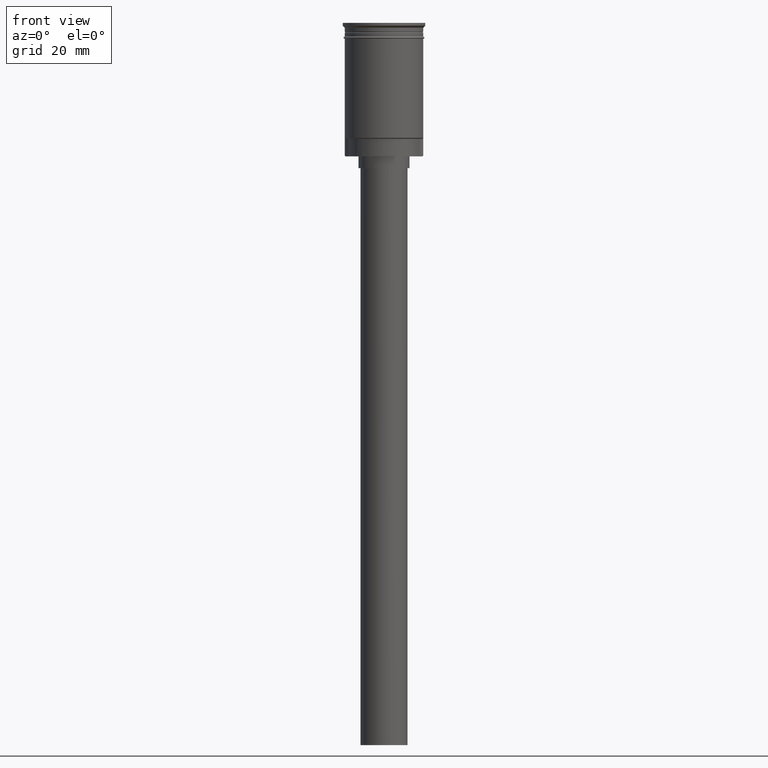
[diagram: clean part render]
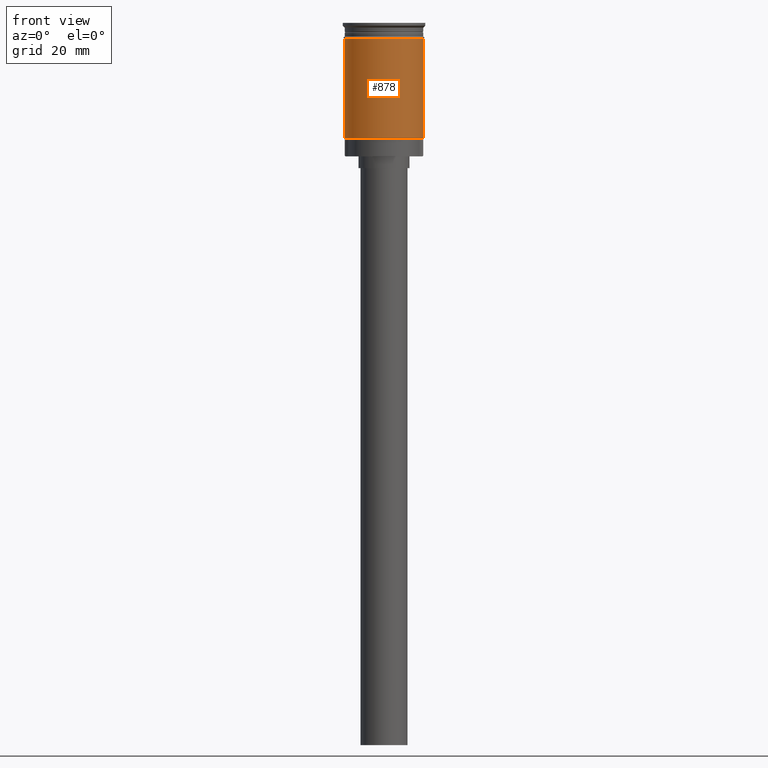
[diagram: same view with one face highlighted and labeled with its STEP entity id]
A machine part, front view. The second image highlights one B-rep face of the part: STEP entity #878.
In plain terms, the highlighted cylindrical surface (partial cylindrical patch) has radius 10 mm, axis along (-0, -0, 1).
Its self-contained STEP definition (entity closure, byte-faithful):
#85 = VERTEX_POINT ( 'NONE', #1096 ) ;
#97 = VERTEX_POINT ( 'NONE', #663 ) ;
#284 = ORIENTED_EDGE ( 'NONE', *, *, #518, .F. ) ;
#369 = DIRECTION ( 'NONE',  ( -0.000000000000000000, -0.000000000000000000, 1.000000000000000000 ) ) ;
#424 = DIRECTION ( 'NONE',  ( -0.000000000000000000, -0.000000000000000000, 1.000000000000000000 ) ) ;
#453 = VECTOR ( 'NONE', #369, 1000.000000000000000 ) ;
#456 = EDGE_CURVE ( 'NONE', #85, #1098, #1303, .T. ) ;
#518 = EDGE_CURVE ( 'NONE', #941, #85, #563, .T. ) ;
#563 = LINE ( 'NONE', #1072, #823 ) ;
#570 = CARTESIAN_POINT ( 'NONE',  ( -9.999999999999991118, 0.000000000000000000, -29.29999999999997229 ) ) ;
#579 = ORIENTED_EDGE ( 'NONE', *, *, #621, .T. ) ;
#621 = EDGE_CURVE ( 'NONE', #97, #1098, #1101, .T. ) ;
#663 = CARTESIAN_POINT ( 'NONE',  ( 9.999999999999994671, 1.224646799147352665E-15, -29.29999999999997229 ) ) ;
#686 = DIRECTION ( 'NONE',  ( -1.000000000000000000, 0.000000000000000000, 0.000000000000000000 ) ) ;
#691 = CARTESIAN_POINT ( 'NONE',  ( 0.000000000000000000, 0.000000000000000000, -29.29999999999997229 ) ) ;
#716 = CARTESIAN_POINT ( 'NONE',  ( 0.000000000000000000, 0.000000000000000000, -3.999999999999996447 ) ) ;
#823 = VECTOR ( 'NONE', #1459, 1000.000000000000000 ) ;
#878 = ADVANCED_FACE ( 'NONE', ( #1503 ), #888, .T. ) ;
#888 = CYLINDRICAL_SURFACE ( 'NONE', #1056, 9.999999999999994671 ) ;
#927 = EDGE_CURVE ( 'NONE', #941, #97, #1414, .T. ) ;
#940 = CARTESIAN_POINT ( 'NONE',  ( 0.000000000000000000, 0.000000000000000000, 0.000000000000000000 ) ) ;
#941 = VERTEX_POINT ( 'NONE', #570 ) ;
#961 = DIRECTION ( 'NONE',  ( -0.000000000000000000, -0.000000000000000000, 1.000000000000000000 ) ) ;
#987 = CARTESIAN_POINT ( 'NONE',  ( 9.999999999999994671, 0.000000000000000000, 0.000000000000000000 ) ) ;
#1015 = CARTESIAN_POINT ( 'NONE',  ( 9.999999999999998224, 0.000000000000000000, -3.999999999999996447 ) ) ;
#1056 = AXIS2_PLACEMENT_3D ( 'NONE', #940, #424, #1413 ) ;
#1063 = DIRECTION ( 'NONE',  ( -0.000000000000000000, -0.000000000000000000, 1.000000000000000000 ) ) ;
#1072 = CARTESIAN_POINT ( 'NONE',  ( -9.999999999999994671, 1.224646799147352665E-15, 0.000000000000000000 ) ) ;
#1096 = CARTESIAN_POINT ( 'NONE',  ( -10.00000000000000000, 1.224646799147353256E-15, -3.999999999999996447 ) ) ;
#1098 = VERTEX_POINT ( 'NONE', #1015 ) ;
#1101 = LINE ( 'NONE', #987, #453 ) ;
#1158 = AXIS2_PLACEMENT_3D ( 'NONE', #691, #1063, #686 ) ;
#1253 = AXIS2_PLACEMENT_3D ( 'NONE', #716, #961, #1434 ) ;
#1303 = CIRCLE ( 'NONE', #1253, 9.999999999999998224 ) ;
#1413 = DIRECTION ( 'NONE',  ( 1.000000000000000000, 0.000000000000000000, 0.000000000000000000 ) ) ;
#1414 = CIRCLE ( 'NONE', #1158, 9.999999999999994671 ) ;
#1434 = DIRECTION ( 'NONE',  ( 1.000000000000000000, 0.000000000000000000, 0.000000000000000000 ) ) ;
#1459 = DIRECTION ( 'NONE',  ( -0.000000000000000000, -0.000000000000000000, 1.000000000000000000 ) ) ;
#1499 = EDGE_LOOP ( 'NONE', ( #284, #1539, #579, #1562 ) ) ;
#1503 = FACE_OUTER_BOUND ( 'NONE', #1499, .T. ) ;
#1539 = ORIENTED_EDGE ( 'NONE', *, *, #927, .T. ) ;
#1562 = ORIENTED_EDGE ( 'NONE', *, *, #456, .F. ) ;